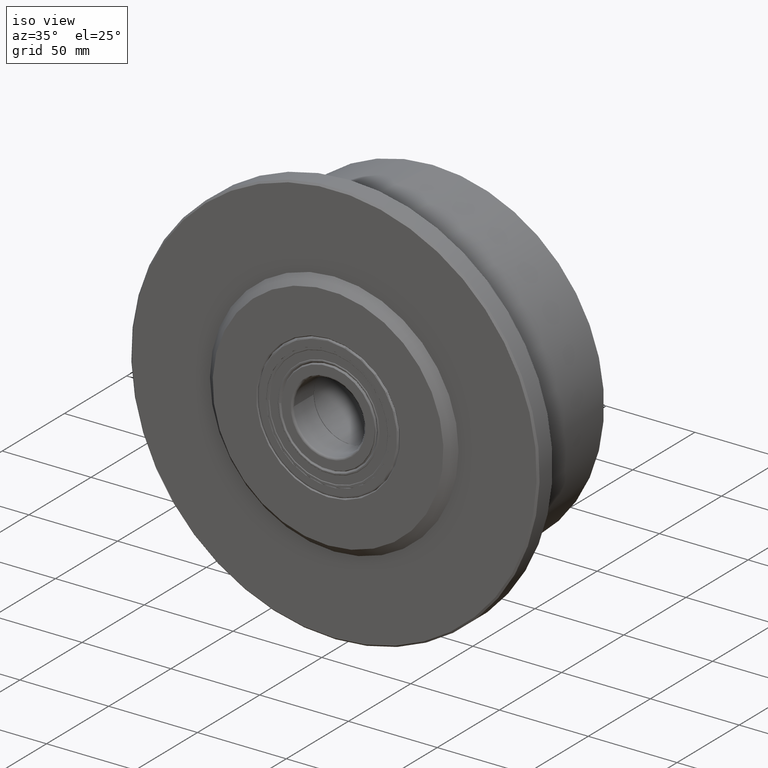
[diagram: clean part render]
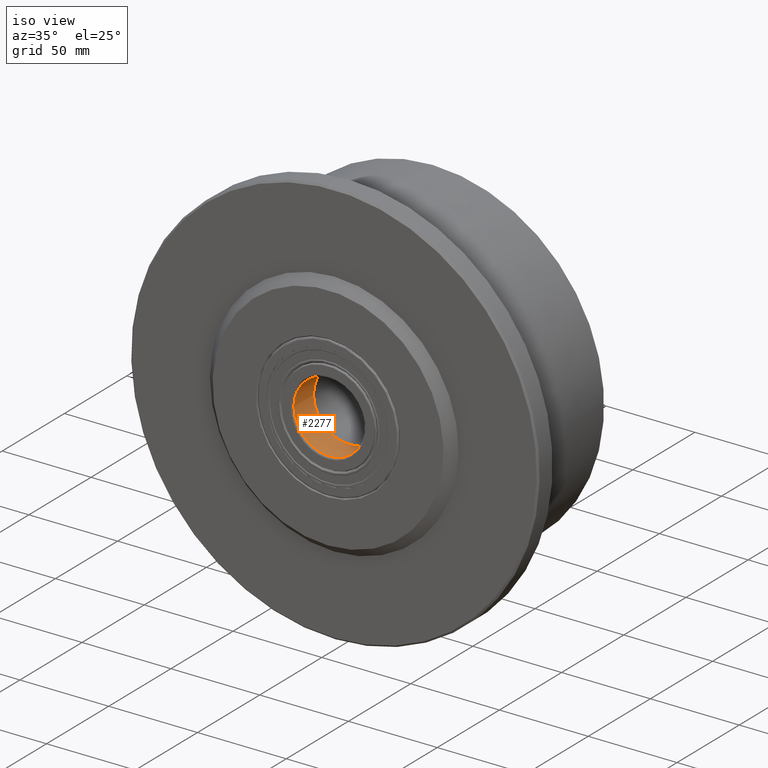
[diagram: same view with one face highlighted and labeled with its STEP entity id]
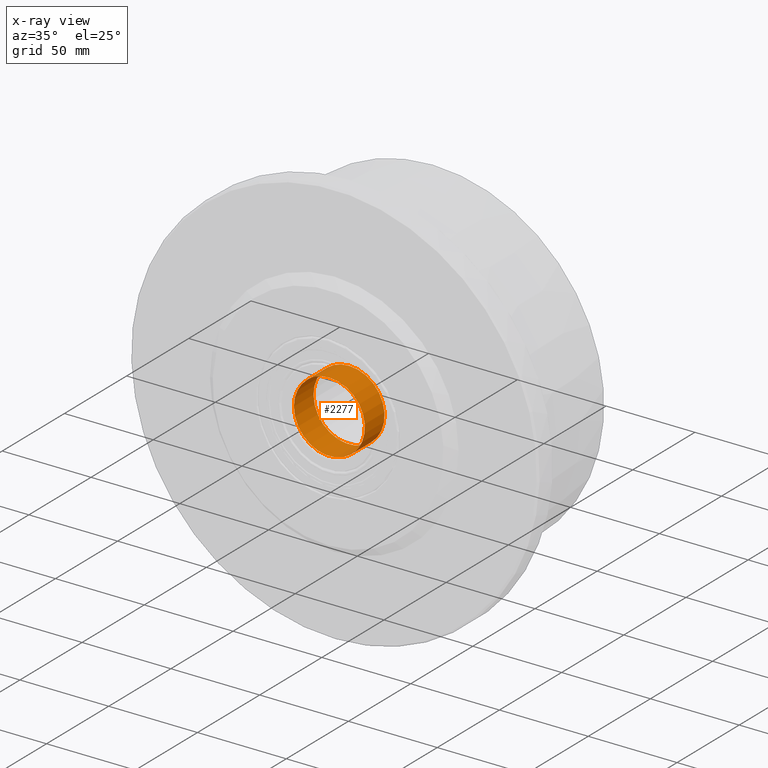
[diagram: x-ray of the same camera — body ghosted, the highlighted face saturated]
A machine part, iso view. The second image highlights one B-rep face of the part: STEP entity #2277.
The next image is the same camera in x-ray: the body ghosted, the highlighted face saturated — about 0% of this face is hidden behind the body in this view.
In plain terms, the highlighted cylindrical surface (bore or boss wall) has radius 20 mm, axis along (0, -1, 0).
Its self-contained STEP definition (entity closure, byte-faithful):
#335=FACE_OUTER_BOUND('',#503,.T.);
#503=EDGE_LOOP('',(#1738,#1739,#1740,#1741,#1742,#1743));
#707=LINE('',#3949,#778);
#778=VECTOR('',#3097,20.);
#885=CIRCLE('',#2555,20.);
#886=CIRCLE('',#2556,20.);
#887=CIRCLE('',#2558,20.);
#888=CIRCLE('',#2559,20.);
#1087=VERTEX_POINT('',#3942);
#1088=VERTEX_POINT('',#3944);
#1089=VERTEX_POINT('',#3948);
#1090=VERTEX_POINT('',#3950);
#1342=EDGE_CURVE('',#1087,#1088,#885,.T.);
#1343=EDGE_CURVE('',#1088,#1087,#886,.T.);
#1344=EDGE_CURVE('',#1088,#1089,#707,.T.);
#1345=EDGE_CURVE('',#1089,#1090,#887,.T.);
#1346=EDGE_CURVE('',#1090,#1089,#888,.T.);
#1738=ORIENTED_EDGE('',*,*,#1343,.F.);
#1739=ORIENTED_EDGE('',*,*,#1344,.T.);
#1740=ORIENTED_EDGE('',*,*,#1345,.T.);
#1741=ORIENTED_EDGE('',*,*,#1346,.T.);
#1742=ORIENTED_EDGE('',*,*,#1344,.F.);
#1743=ORIENTED_EDGE('',*,*,#1342,.F.);
#2224=CYLINDRICAL_SURFACE('',#2557,20.);
#2277=ADVANCED_FACE('',(#335),#2224,.F.);
#2555=AXIS2_PLACEMENT_3D('',#3945,#3091,#3092);
#2556=AXIS2_PLACEMENT_3D('',#3946,#3093,#3094);
#2557=AXIS2_PLACEMENT_3D('',#3947,#3095,#3096);
#2558=AXIS2_PLACEMENT_3D('',#3951,#3098,#3099);
#2559=AXIS2_PLACEMENT_3D('',#3952,#3100,#3101);
#3091=DIRECTION('center_axis',(1.,0.,0.));
#3092=DIRECTION('ref_axis',(0.,1.,0.));
#3093=DIRECTION('center_axis',(1.,0.,0.));
#3094=DIRECTION('ref_axis',(0.,1.,0.));
#3095=DIRECTION('center_axis',(1.,0.,0.));
#3096=DIRECTION('ref_axis',(0.,1.,0.));
#3097=DIRECTION('',(1.,0.,0.));
#3098=DIRECTION('center_axis',(1.,0.,0.));
#3099=DIRECTION('ref_axis',(0.,1.,0.));
#3100=DIRECTION('center_axis',(1.,0.,0.));
#3101=DIRECTION('ref_axis',(0.,1.,0.));
#3942=CARTESIAN_POINT('',(1.1,-2.44929359829471E-15,20.));
#3944=CARTESIAN_POINT('',(1.1,-20.,2.44921270764475E-15));
#3945=CARTESIAN_POINT('Origin',(1.1,0.,0.));
#3946=CARTESIAN_POINT('Origin',(1.1,0.,0.));
#3947=CARTESIAN_POINT('Origin',(9.,0.,0.));
#3948=CARTESIAN_POINT('',(16.9,-20.,-2.44929359829471E-15));
#3949=CARTESIAN_POINT('',(9.,-20.,-2.44929359829471E-15));
#3950=CARTESIAN_POINT('',(16.9,2.44921270764475E-15,20.));
#3951=CARTESIAN_POINT('Origin',(16.9,0.,0.));
#3952=CARTESIAN_POINT('Origin',(16.9,0.,0.));